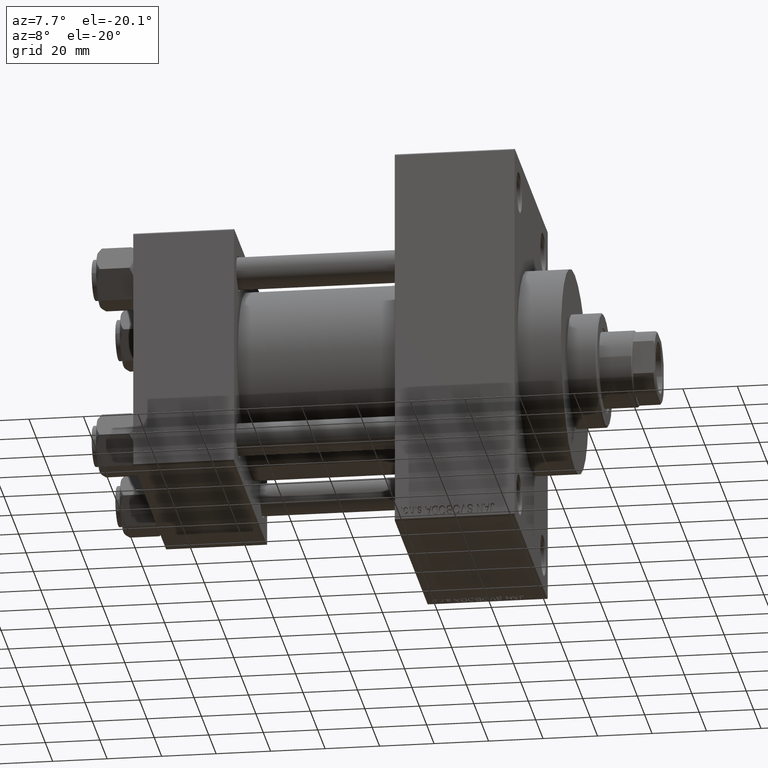
[diagram: clean part render]
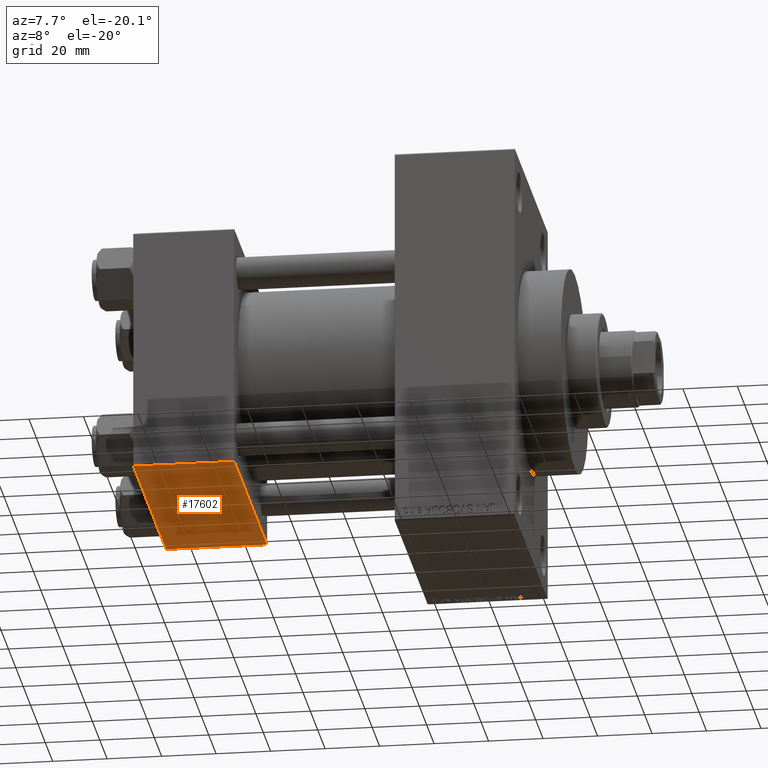
[diagram: same view with one face highlighted and labeled with its STEP entity id]
A machine part, auxiliary view. The second image highlights one B-rep face of the part: STEP entity #17602.
In plain terms, the highlighted planar face has unit normal (0, 0, -1).
Its self-contained STEP definition (entity closure, byte-faithful):
#112 = CARTESIAN_POINT ( 'NONE',  ( 37.00000000000000000, -44.49999999999995737, -45.00000000000000000 ) ) ;
#209 = LINE ( 'NONE', #25958, #25487 ) ;
#3862 = CARTESIAN_POINT ( 'NONE',  ( 0.000000000000000000, 44.99999999999998579, -44.99999999999998579 ) ) ;
#6635 = DIRECTION ( 'NONE',  ( 0.000000000000000000, -1.000000000000000000, -1.541976423090495633E-16 ) ) ;
#7624 = CARTESIAN_POINT ( 'NONE',  ( 37.00000000000000000, 44.99999999999998579, -44.99999999999998579 ) ) ;
#9759 = VERTEX_POINT ( 'NONE', #16989 ) ;
#9762 = VECTOR ( 'NONE', #48687, 1000.000000000000000 ) ;
#11330 = FACE_OUTER_BOUND ( 'NONE', #42247, .T. ) ;
#11587 = DIRECTION ( 'NONE',  ( 0.000000000000000000, 1.541976423090495880E-16, -1.000000000000000000 ) ) ;
#14817 = DIRECTION ( 'NONE',  ( -1.000000000000000000, 0.000000000000000000, 0.000000000000000000 ) ) ;
#16989 = CARTESIAN_POINT ( 'NONE',  ( 37.00000000000000000, 44.49999999999998579, -44.99999999999998579 ) ) ;
#17279 = CARTESIAN_POINT ( 'NONE',  ( 0.000000000000000000, -44.49999999999995737, -45.00000000000000000 ) ) ;
#17317 = ORIENTED_EDGE ( 'NONE', *, *, #48315, .F. ) ;
#17602 = ADVANCED_FACE ( 'NONE', ( #11330 ), #45483, .T. ) ;
#20134 = CARTESIAN_POINT ( 'NONE',  ( 0.000000000000000000, 44.49999999999998579, -44.99999999999998579 ) ) ;
#20232 = ORIENTED_EDGE ( 'NONE', *, *, #21074, .T. ) ;
#21074 = EDGE_CURVE ( 'NONE', #9759, #27733, #41271, .T. ) ;
#22266 = EDGE_CURVE ( 'NONE', #27733, #24029, #209, .T. ) ;
#24029 = VERTEX_POINT ( 'NONE', #17279 ) ;
#24673 = VECTOR ( 'NONE', #6635, 1000.000000000000000 ) ;
#25487 = VECTOR ( 'NONE', #14817, 1000.000000000000000 ) ;
#25958 = CARTESIAN_POINT ( 'NONE',  ( 0.000000000000000000, -44.49999999999998579, -45.00000000000000000 ) ) ;
#27733 = VERTEX_POINT ( 'NONE', #112 ) ;
#28498 = AXIS2_PLACEMENT_3D ( 'NONE', #7624, #11587, #41780 ) ;
#30924 = ORIENTED_EDGE ( 'NONE', *, *, #44552, .T. ) ;
#34059 = DIRECTION ( 'NONE',  ( 0.000000000000000000, -1.000000000000000000, -1.541976423090495633E-16 ) ) ;
#34075 = CARTESIAN_POINT ( 'NONE',  ( 37.00000000000000000, 44.49999999999998579, -44.99999999999998579 ) ) ;
#37547 = LINE ( 'NONE', #34075, #9762 ) ;
#39162 = VECTOR ( 'NONE', #34059, 1000.000000000000000 ) ;
#40590 = VERTEX_POINT ( 'NONE', #20134 ) ;
#41271 = LINE ( 'NONE', #47742, #24673 ) ;
#41780 = DIRECTION ( 'NONE',  ( 0.000000000000000000, 1.000000000000000000, 1.541976423090495880E-16 ) ) ;
#42247 = EDGE_LOOP ( 'NONE', ( #17317, #30924, #20232, #48209 ) ) ;
#44552 = EDGE_CURVE ( 'NONE', #40590, #9759, #37547, .T. ) ;
#44699 = LINE ( 'NONE', #3862, #39162 ) ;
#45483 = PLANE ( 'NONE',  #28498 ) ;
#47742 = CARTESIAN_POINT ( 'NONE',  ( 37.00000000000000000, 44.99999999999998579, -44.99999999999998579 ) ) ;
#48209 = ORIENTED_EDGE ( 'NONE', *, *, #22266, .T. ) ;
#48315 = EDGE_CURVE ( 'NONE', #40590, #24029, #44699, .T. ) ;
#48687 = DIRECTION ( 'NONE',  ( 1.000000000000000000, 0.000000000000000000, 0.000000000000000000 ) ) ;